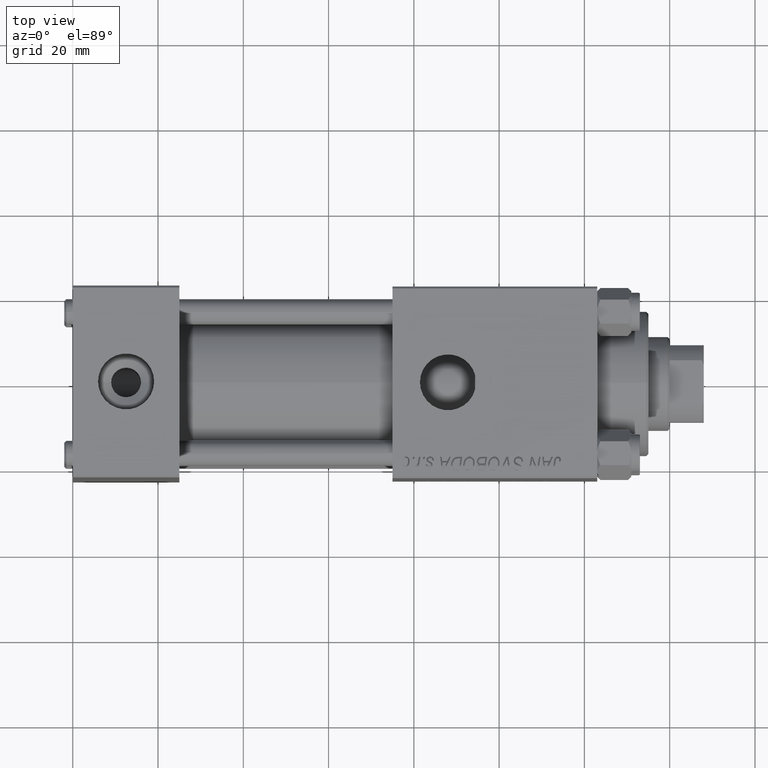
[diagram: clean part render]
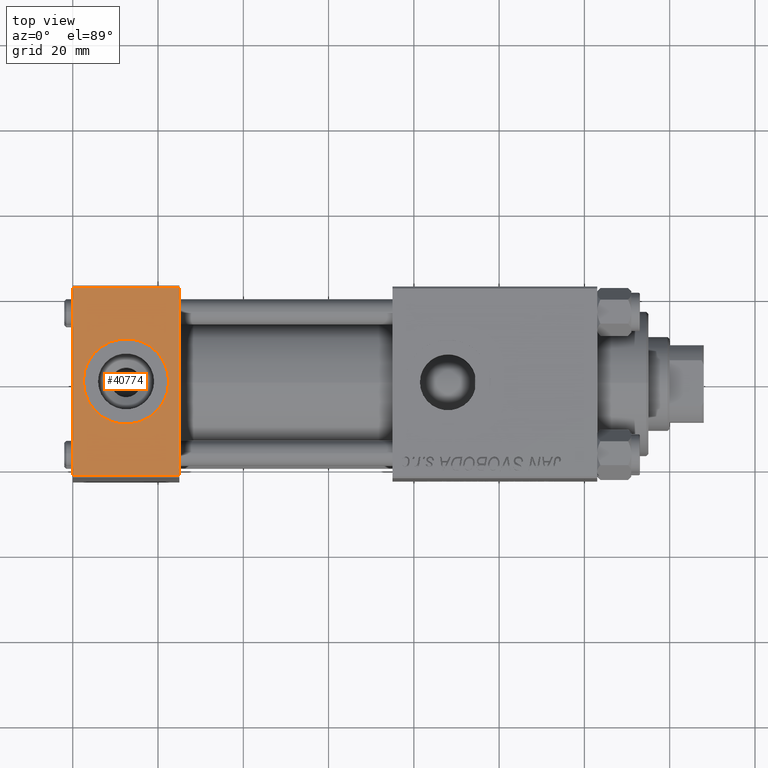
[diagram: same view with one face highlighted and labeled with its STEP entity id]
A machine part, top view. The second image highlights one B-rep face of the part: STEP entity #40774.
In plain terms, the highlighted planar face has unit normal (0, 0, -1).
Its self-contained STEP definition (entity closure, byte-faithful):
#1772 = CARTESIAN_POINT ( 'NONE',  ( 0.000000000000000000, 22.50000000000000355, 35.00000000000000711 ) ) ;
#2494 = ORIENTED_EDGE ( 'NONE', *, *, #27819, .T. ) ;
#5317 = DIRECTION ( 'NONE',  ( 0.000000000000000000, -1.000000000000000000, -1.541976423090495387E-16 ) ) ;
#6235 = EDGE_CURVE ( 'NONE', #45939, #32074, #10410, .T. ) ;
#6765 = DIRECTION ( 'NONE',  ( 0.000000000000000000, 1.000000000000000000, 1.541976423090495387E-16 ) ) ;
#9255 = EDGE_CURVE ( 'NONE', #49227, #24875, #9268, .T. ) ;
#9268 = CIRCLE ( 'NONE', #35899, 9.999999999999998224 ) ;
#9623 = DIRECTION ( 'NONE',  ( 1.000000000000000000, 0.000000000000000000, 0.000000000000000000 ) ) ;
#10058 = CARTESIAN_POINT ( 'NONE',  ( 25.00000000000000000, 22.50000000000000355, 35.00000000000000711 ) ) ;
#10410 = LINE ( 'NONE', #37936, #34964 ) ;
#12005 = VECTOR ( 'NONE', #5317, 1000.000000000000000 ) ;
#13656 = CARTESIAN_POINT ( 'NONE',  ( 12.50000000000000000, -5.396917480816734322E-15, 35.00000000000000000 ) ) ;
#14453 = DIRECTION ( 'NONE',  ( 0.000000000000000000, -1.000000000000000000, -1.541976423090495387E-16 ) ) ;
#17801 = DIRECTION ( 'NONE',  ( -1.000000000000000000, 0.000000000000000000, 0.000000000000000000 ) ) ;
#18040 = EDGE_LOOP ( 'NONE', ( #44854, #37283, #20429, #2494 ) ) ;
#20429 = ORIENTED_EDGE ( 'NONE', *, *, #6235, .F. ) ;
#20754 = AXIS2_PLACEMENT_3D ( 'NONE', #26997, #41927, #22729 ) ;
#22180 = DIRECTION ( 'NONE',  ( 0.000000000000000000, 1.541976423090495387E-16, -1.000000000000000000 ) ) ;
#22373 = CIRCLE ( 'NONE', #20754, 9.999999999999998224 ) ;
#22545 = VERTEX_POINT ( 'NONE', #46568 ) ;
#22729 = DIRECTION ( 'NONE',  ( 1.000000000000000000, 0.000000000000000000, 0.000000000000000000 ) ) ;
#22803 = EDGE_CURVE ( 'NONE', #22545, #36429, #43474, .T. ) ;
#24336 = EDGE_LOOP ( 'NONE', ( #42906, #43205 ) ) ;
#24875 = VERTEX_POINT ( 'NONE', #44249 ) ;
#26647 = CARTESIAN_POINT ( 'NONE',  ( 25.00000000000000000, -21.99999999999998934, 35.00000000000000000 ) ) ;
#26997 = CARTESIAN_POINT ( 'NONE',  ( 12.50000000000000000, -5.396917480816734322E-15, 35.00000000000000000 ) ) ;
#27819 = EDGE_CURVE ( 'NONE', #45939, #22545, #48124, .T. ) ;
#28644 = CARTESIAN_POINT ( 'NONE',  ( 0.000000000000000000, 22.00000000000000355, 35.00000000000000711 ) ) ;
#29245 = FACE_BOUND ( 'NONE', #24336, .T. ) ;
#32074 = VERTEX_POINT ( 'NONE', #26647 ) ;
#32591 = CARTESIAN_POINT ( 'NONE',  ( 0.000000000000000000, -21.99999999999998934, 35.00000000000000000 ) ) ;
#34254 = CARTESIAN_POINT ( 'NONE',  ( 25.00000000000000000, 22.00000000000000355, 35.00000000000000711 ) ) ;
#34408 = LINE ( 'NONE', #49834, #47479 ) ;
#34660 = DIRECTION ( 'NONE',  ( 1.000000000000000000, 0.000000000000000000, 0.000000000000000000 ) ) ;
#34964 = VECTOR ( 'NONE', #14453, 1000.000000000000000 ) ;
#35899 = AXIS2_PLACEMENT_3D ( 'NONE', #13656, #40921, #9623 ) ;
#36429 = VERTEX_POINT ( 'NONE', #32591 ) ;
#37283 = ORIENTED_EDGE ( 'NONE', *, *, #47192, .T. ) ;
#37936 = CARTESIAN_POINT ( 'NONE',  ( 25.00000000000000000, 22.50000000000000355, 35.00000000000000711 ) ) ;
#40774 = ADVANCED_FACE ( 'NONE', ( #29245, #44673 ), #45420, .F. ) ;
#40921 = DIRECTION ( 'NONE',  ( 0.000000000000000000, 0.000000000000000000, 1.000000000000000000 ) ) ;
#41927 = DIRECTION ( 'NONE',  ( 0.000000000000000000, 0.000000000000000000, 1.000000000000000000 ) ) ;
#42825 = VECTOR ( 'NONE', #17801, 1000.000000000000000 ) ;
#42906 = ORIENTED_EDGE ( 'NONE', *, *, #9255, .F. ) ;
#43205 = ORIENTED_EDGE ( 'NONE', *, *, #43924, .F. ) ;
#43474 = LINE ( 'NONE', #1772, #12005 ) ;
#43521 = CARTESIAN_POINT ( 'NONE',  ( 22.50000000000000000, -5.396917480816734322E-15, 35.00000000000000000 ) ) ;
#43924 = EDGE_CURVE ( 'NONE', #24875, #49227, #22373, .T. ) ;
#44249 = CARTESIAN_POINT ( 'NONE',  ( 2.500000000000003997, -4.172270681669381263E-15, 35.00000000000000000 ) ) ;
#44673 = FACE_OUTER_BOUND ( 'NONE', #18040, .T. ) ;
#44854 = ORIENTED_EDGE ( 'NONE', *, *, #22803, .T. ) ;
#45420 = PLANE ( 'NONE',  #49021 ) ;
#45939 = VERTEX_POINT ( 'NONE', #34254 ) ;
#46568 = CARTESIAN_POINT ( 'NONE',  ( 0.000000000000000000, 22.00000000000000355, 35.00000000000000711 ) ) ;
#47192 = EDGE_CURVE ( 'NONE', #36429, #32074, #34408, .T. ) ;
#47479 = VECTOR ( 'NONE', #34660, 1000.000000000000000 ) ;
#48124 = LINE ( 'NONE', #28644, #42825 ) ;
#49021 = AXIS2_PLACEMENT_3D ( 'NONE', #10058, #22180, #6765 ) ;
#49227 = VERTEX_POINT ( 'NONE', #43521 ) ;
#49834 = CARTESIAN_POINT ( 'NONE',  ( 25.00000000000000000, -22.00000000000000355, 35.00000000000000000 ) ) ;